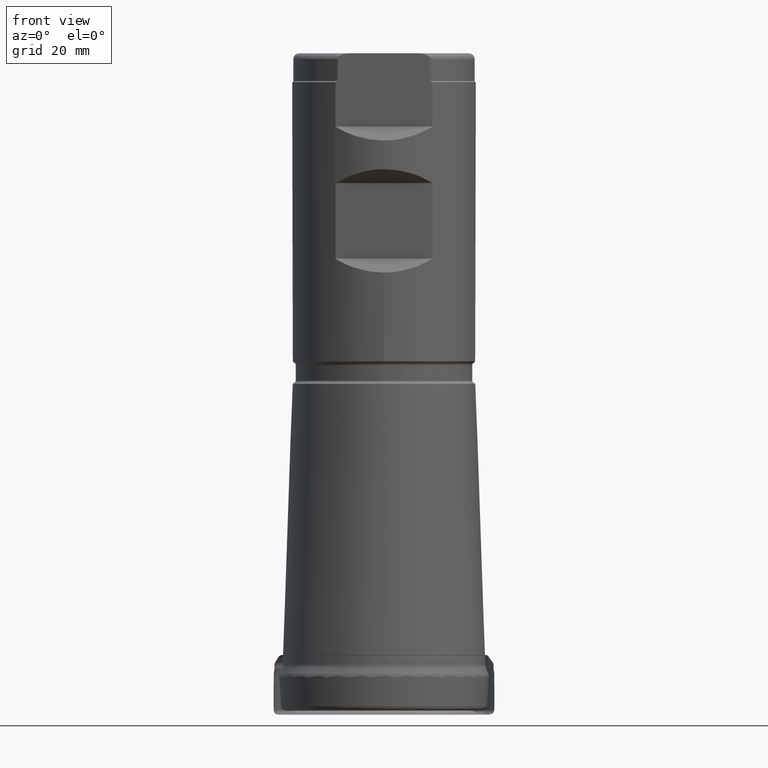
[diagram: clean part render]
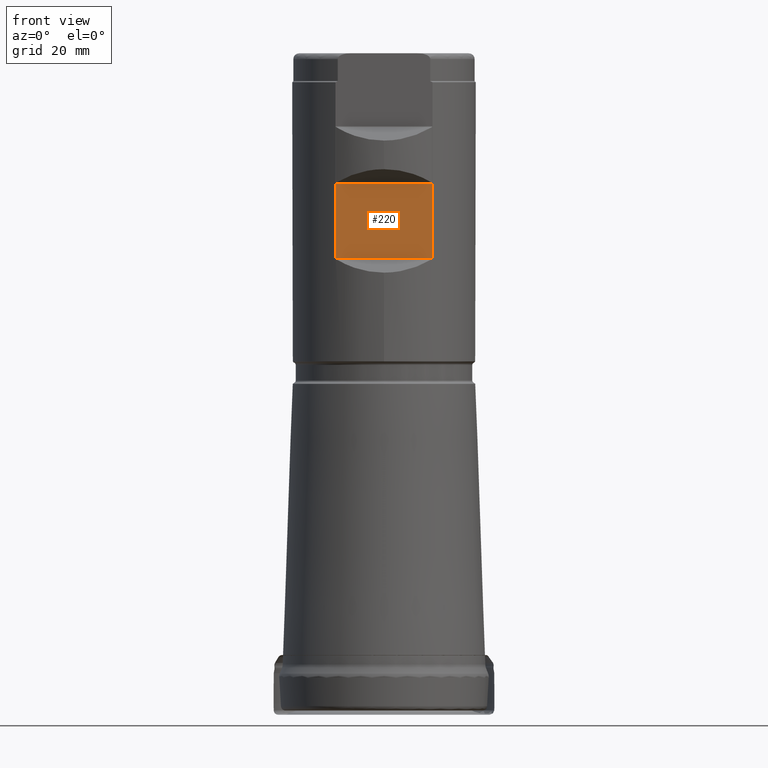
[diagram: same view with one face highlighted and labeled with its STEP entity id]
A machine part, front view. The second image highlights one B-rep face of the part: STEP entity #220.
In plain terms, the highlighted planar face has unit normal (0, -1, 0).
Its self-contained STEP definition (entity closure, byte-faithful):
#183=PLANE('',#938);
#192=FACE_OUTER_BOUND('',#427,.T.);
#220=ADVANCED_FACE('',(#192),#183,.T.);
#262=LINE('',#1450,#275);
#263=LINE('',#1482,#276);
#272=LINE('',#1617,#285);
#273=LINE('',#1618,#286);
#275=VECTOR('',#982,1.);
#276=VECTOR('',#985,1.);
#285=VECTOR('',#1086,1.);
#286=VECTOR('',#1087,1.);
#427=EDGE_LOOP('',(#567,#568,#569,#570));
#567=ORIENTED_EDGE('',*,*,#752,.T.);
#568=ORIENTED_EDGE('',*,*,#715,.F.);
#569=ORIENTED_EDGE('',*,*,#753,.T.);
#570=ORIENTED_EDGE('',*,*,#711,.F.);
#642=VERTEX_POINT('',#1433);
#644=VERTEX_POINT('',#1449);
#645=VERTEX_POINT('',#1451);
#648=VERTEX_POINT('',#1481);
#711=EDGE_CURVE('',#644,#645,#262,.T.);
#715=EDGE_CURVE('',#648,#642,#263,.T.);
#752=EDGE_CURVE('',#644,#642,#272,.T.);
#753=EDGE_CURVE('',#648,#645,#273,.T.);
#938=AXIS2_PLACEMENT_3D('',#1619,#1088,#1089);
#982=DIRECTION('',(0.,-1.17145536458252E-15,-1.));
#985=DIRECTION('',(0.,1.17145536458252E-15,1.));
#1086=DIRECTION('',(-1.,7.17309531289991E-32,6.12323399573676E-17));
#1087=DIRECTION('',(1.,-7.17309531289991E-32,-6.12323399573676E-17));
#1088=DIRECTION('',(2.05927208001509E-49,-1.,1.17145536458252E-15));
#1089=DIRECTION('',(6.24500451351651E-17,1.17093834628434E-15,1.));
#1433=CARTESIAN_POINT('',(-8.37291264972948,-13.4873999999999,91.7570609312881));
#1449=CARTESIAN_POINT('',(8.37291264972948,-13.4873999999999,91.7570609312881));
#1450=CARTESIAN_POINT('',(8.37291264972948,-13.4874,1.57998870842703E-14));
#1451=CARTESIAN_POINT('',(8.37291264972948,-13.4873999999999,78.8991890687119));
#1481=CARTESIAN_POINT('',(-8.37291264972948,-13.4873999999999,78.8991890687119));
#1482=CARTESIAN_POINT('',(-8.37291264972948,-13.4874,1.57998870842703E-14));
#1617=CARTESIAN_POINT('',(-17.5,-13.4873999999999,91.7570609312881));
#1618=CARTESIAN_POINT('',(-17.5,-13.4873999999999,78.8991890687119));
#1619=CARTESIAN_POINT('',(-17.5,-13.4873999999999,91.881325));